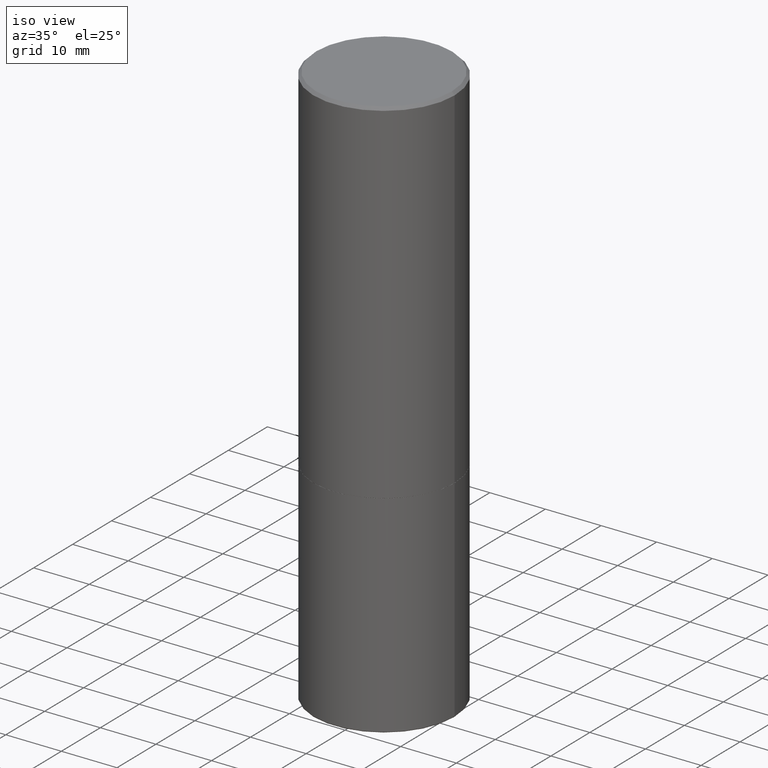
[diagram: clean part render]
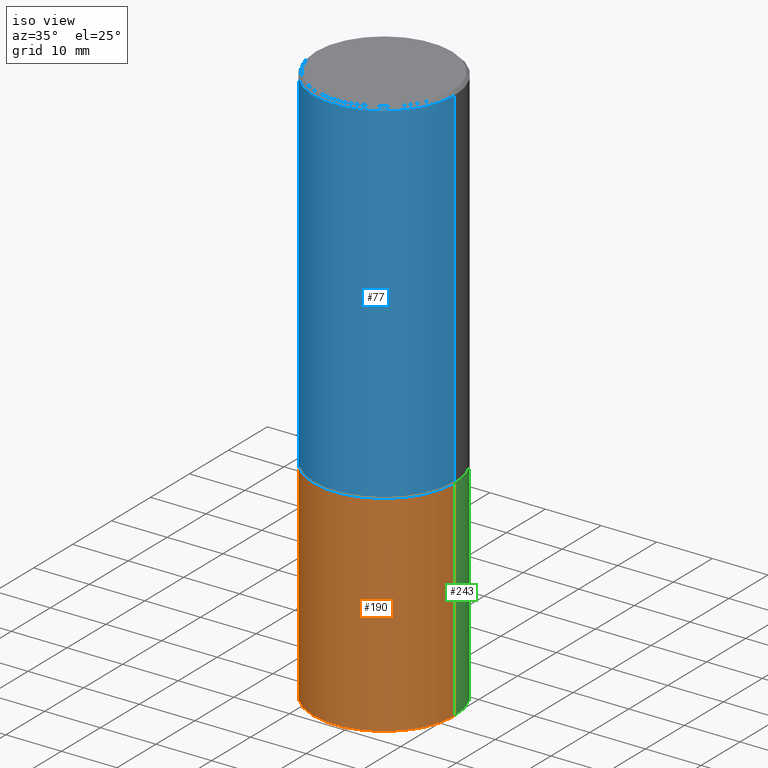
[diagram: same view with three faces highlighted in distinct colors, each labeled with its STEP entity id]
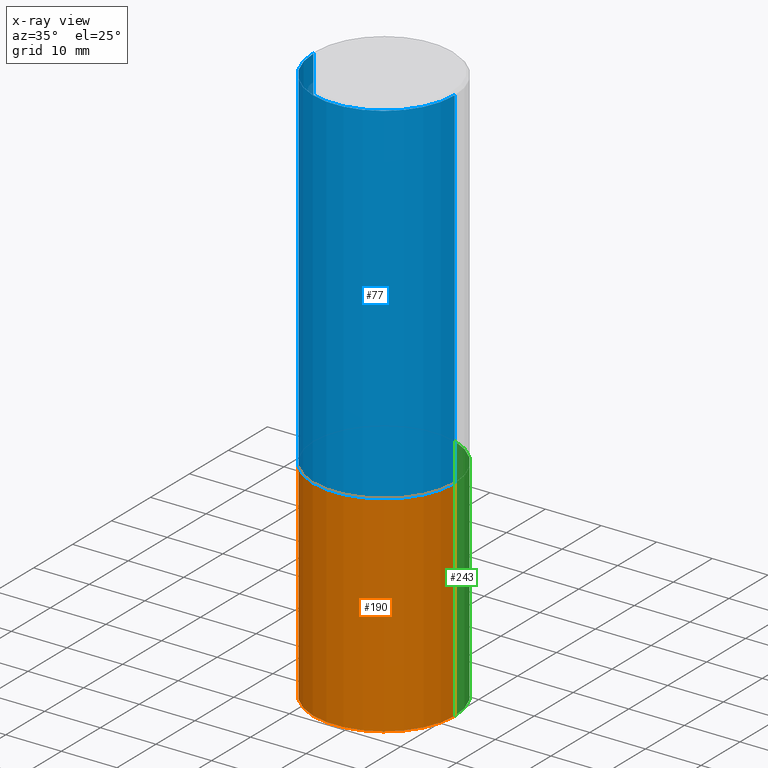
[diagram: x-ray of the same camera — body ghosted, the three highlighted faces saturated]
A machine part, iso view with three faces highlighted in distinct colors.
The next image is the same camera in x-ray (body ghosted, the three faces saturated) — at least one of them is partly hidden behind the body in this view.
Their STEP definitions:

[orange] entity #190 — the highlighted cylindrical surface (partial cylindrical patch) has radius 12.7 mm, axis along (-0, 0, 1).
#7 = DIRECTION ( 'NONE',  ( 1.000000000000000000, -6.982962677686266711E-15, 4.876176775795935793E-29 ) ) ;
#9 = EDGE_CURVE ( 'NONE', #217, #93, #27, .T. ) ;
#20 = CIRCLE ( 'NONE', #200, 0.5000000000000000000 ) ;
#25 = DIRECTION ( 'NONE',  ( 1.000000000000000000, -6.982962677686269077E-15, 0.000000000000000000 ) ) ;
#27 = CIRCLE ( 'NONE', #411, 0.5000000000000000000 ) ;
#34 = EDGE_CURVE ( 'NONE', #93, #147, #292, .T. ) ;
#53 = CARTESIAN_POINT ( 'NONE',  ( 6.113672015462842613E-29, -8.728703347107864943E-15, -2.500000000000000000 ) ) ;
#93 = VERTEX_POINT ( 'NONE', #346 ) ;
#96 = EDGE_CURVE ( 'NONE', #341, #147, #20, .T. ) ;
#127 = ORIENTED_EDGE ( 'NONE', *, *, #345, .F. ) ;
#144 = VECTOR ( 'NONE', #369, 39.37007874015748143 ) ;
#147 = VERTEX_POINT ( 'NONE', #349 ) ;
#190 = ADVANCED_FACE ( 'NONE', ( #202 ), #273, .T. ) ;
#192 = CARTESIAN_POINT ( 'NONE',  ( 0.5000000000000000000, -3.491481338843133355E-15, 2.438088387897967896E-29 ) ) ;
#200 = AXIS2_PLACEMENT_3D ( 'NONE', #53, #290, #25 ) ;
#202 = FACE_OUTER_BOUND ( 'NONE', #282, .T. ) ;
#217 = VERTEX_POINT ( 'NONE', #330 ) ;
#230 = AXIS2_PLACEMENT_3D ( 'NONE', #364, #306, #7 ) ;
#241 = LINE ( 'NONE', #279, #144 ) ;
#273 = CYLINDRICAL_SURFACE ( 'NONE', #230, 0.5000000000000000000 ) ;
#279 = CARTESIAN_POINT ( 'NONE',  ( -0.5000000000000000000, 3.552713678800500929E-15, -2.459467545127452891E-29 ) ) ;
#282 = EDGE_LOOP ( 'NONE', ( #127, #370, #377, #399 ) ) ;
#290 = DIRECTION ( 'NONE',  ( -2.445468806185136597E-29, 3.491481338843145583E-15, 1.000000000000000000 ) ) ;
#292 = LINE ( 'NONE', #192, #304 ) ;
#304 = VECTOR ( 'NONE', #321, 39.37007874015748143 ) ;
#306 = DIRECTION ( 'NONE',  ( -2.445468806185136597E-29, 3.491481338843145583E-15, 1.000000000000000000 ) ) ;
#321 = DIRECTION ( 'NONE',  ( -2.445468806185136877E-29, 3.491481338843145188E-15, 1.000000000000000000 ) ) ;
#330 = CARTESIAN_POINT ( 'NONE',  ( -0.5000000000000000000, -1.037829686318364817E-14, -3.989999999999999769 ) ) ;
#341 = VERTEX_POINT ( 'NONE', #373 ) ;
#345 = EDGE_CURVE ( 'NONE', #217, #341, #241, .T. ) ;
#346 = CARTESIAN_POINT ( 'NONE',  ( 0.5000000000000000000, -1.742249188082728404E-14, -3.989999999999999769 ) ) ;
#349 = CARTESIAN_POINT ( 'NONE',  ( 0.5000000000000000000, -1.222018468595099830E-14, -2.500000000000000000 ) ) ;
#351 = DIRECTION ( 'NONE',  ( -2.445468806185136597E-29, 3.491481338843145583E-15, 1.000000000000000000 ) ) ;
#364 = CARTESIAN_POINT ( 'NONE',  ( 0.000000000000000000, 0.000000000000000000, 0.000000000000000000 ) ) ;
#369 = DIRECTION ( 'NONE',  ( -2.445468806185136877E-29, 3.491481338843145188E-15, 1.000000000000000000 ) ) ;
#370 = ORIENTED_EDGE ( 'NONE', *, *, #9, .T. ) ;
#373 = CARTESIAN_POINT ( 'NONE',  ( -0.5000000000000000000, -7.777143265745505305E-15, -2.500000000000000000 ) ) ;
#377 = ORIENTED_EDGE ( 'NONE', *, *, #34, .T. ) ;
#382 = CARTESIAN_POINT ( 'NONE',  ( 9.757420536678694842E-29, -1.393101054198414910E-14, -3.989999999999999769 ) ) ;
#399 = ORIENTED_EDGE ( 'NONE', *, *, #96, .F. ) ;
#411 = AXIS2_PLACEMENT_3D ( 'NONE', #382, #351, #414 ) ;
#414 = DIRECTION ( 'NONE',  ( 1.000000000000000000, -6.982962677686266711E-15, 0.000000000000000000 ) ) ;

[blue] entity #77 — the highlighted cylindrical surface (partial cylindrical patch) has radius 12.7 mm, axis along (-0, 0, 1).
#3 = CARTESIAN_POINT ( 'NONE',  ( -0.5000000000000001110, 3.552713678800501718E-15, -2.459467545127453732E-29 ) ) ;
#8 = CARTESIAN_POINT ( 'NONE',  ( -0.5000000000000002220, -8.448070674724393209E-16, -2.499000000000000110 ) ) ;
#10 = VERTEX_POINT ( 'NONE', #296 ) ;
#36 = DIRECTION ( 'NONE',  ( 1.000000000000000000, -6.982962677686269866E-15, 0.000000000000000000 ) ) ;
#51 = ORIENTED_EDGE ( 'NONE', *, *, #295, .F. ) ;
#70 = CARTESIAN_POINT ( 'NONE',  ( -0.5000000000000001110, 3.421651712066270452E-15, -0.02000000000000010797 ) ) ;
#74 = CARTESIAN_POINT ( 'NONE',  ( 0.5000000000000001110, -3.491481338843134539E-15, 2.438088387897968457E-29 ) ) ;
#77 = ADVANCED_FACE ( 'NONE', ( #228 ), #161, .T. ) ;
#82 = EDGE_LOOP ( 'NONE', ( #51, #153, #175, #142 ) ) ;
#84 = AXIS2_PLACEMENT_3D ( 'NONE', #103, #236, #36 ) ;
#91 = VECTOR ( 'NONE', #135, 39.37007874015748143 ) ;
#103 = CARTESIAN_POINT ( 'NONE',  ( 6.111226546656657010E-29, -8.725211865769021935E-15, -2.499000000000000110 ) ) ;
#135 = DIRECTION ( 'NONE',  ( -2.445468806185136877E-29, 3.491481338843145188E-15, 1.000000000000000000 ) ) ;
#138 = EDGE_CURVE ( 'NONE', #210, #10, #294, .T. ) ;
#142 = ORIENTED_EDGE ( 'NONE', *, *, #138, .F. ) ;
#153 = ORIENTED_EDGE ( 'NONE', *, *, #310, .T. ) ;
#160 = DIRECTION ( 'NONE',  ( 1.000000000000000000, -6.982962677686265922E-15, 0.000000000000000000 ) ) ;
#161 = CYLINDRICAL_SURFACE ( 'NONE', #371, 0.5000000000000001110 ) ;
#175 = ORIENTED_EDGE ( 'NONE', *, *, #332, .T. ) ;
#183 = LINE ( 'NONE', #74, #214 ) ;
#194 = DIRECTION ( 'NONE',  ( -2.445468806185136597E-29, 3.491481338843145583E-15, 1.000000000000000000 ) ) ;
#209 = DIRECTION ( 'NONE',  ( -2.445468806185136877E-29, 3.491481338843145188E-15, 1.000000000000000000 ) ) ;
#210 = VERTEX_POINT ( 'NONE', #70 ) ;
#214 = VECTOR ( 'NONE', #209, 39.37007874015748143 ) ;
#219 = DIRECTION ( 'NONE',  ( 1.000000000000000000, -6.982962677686267499E-15, 4.876176775795935793E-29 ) ) ;
#228 = FACE_OUTER_BOUND ( 'NONE', #82, .T. ) ;
#236 = DIRECTION ( 'NONE',  ( -2.445468806185136597E-29, 3.491481338843145583E-15, 1.000000000000000000 ) ) ;
#249 = CARTESIAN_POINT ( 'NONE',  ( 0.5000000000000002220, -1.221669320461215845E-14, -2.499000000000000110 ) ) ;
#261 = CARTESIAN_POINT ( 'NONE',  ( 4.890937612370299433E-31, -6.982962677686328587E-17, -0.02000000000000010797 ) ) ;
#294 = CIRCLE ( 'NONE', #393, 0.5000000000000001110 ) ;
#295 = EDGE_CURVE ( 'NONE', #318, #210, #327, .T. ) ;
#296 = CARTESIAN_POINT ( 'NONE',  ( 0.5000000000000001110, -3.500078625662629868E-15, -0.02000000000000010797 ) ) ;
#297 = DIRECTION ( 'NONE',  ( -2.445468806185136597E-29, 3.491481338843145583E-15, 1.000000000000000000 ) ) ;
#310 = EDGE_CURVE ( 'NONE', #318, #325, #329, .T. ) ;
#318 = VERTEX_POINT ( 'NONE', #8 ) ;
#325 = VERTEX_POINT ( 'NONE', #249 ) ;
#327 = LINE ( 'NONE', #3, #91 ) ;
#329 = CIRCLE ( 'NONE', #84, 0.5000000000000002220 ) ;
#332 = EDGE_CURVE ( 'NONE', #325, #10, #183, .T. ) ;
#354 = CARTESIAN_POINT ( 'NONE',  ( 0.000000000000000000, 0.000000000000000000, 0.000000000000000000 ) ) ;
#371 = AXIS2_PLACEMENT_3D ( 'NONE', #354, #297, #219 ) ;
#393 = AXIS2_PLACEMENT_3D ( 'NONE', #261, #194, #160 ) ;

[green] entity #243 — the highlighted cylindrical surface (partial cylindrical patch) has radius 12.7 mm, axis along (-0, 0, 1).
#34 = EDGE_CURVE ( 'NONE', #93, #147, #292, .T. ) ;
#35 = CARTESIAN_POINT ( 'NONE',  ( 0.000000000000000000, 0.000000000000000000, 0.000000000000000000 ) ) ;
#62 = EDGE_CURVE ( 'NONE', #93, #217, #116, .T. ) ;
#75 = ORIENTED_EDGE ( 'NONE', *, *, #345, .T. ) ;
#81 = AXIS2_PLACEMENT_3D ( 'NONE', #326, #416, #122 ) ;
#90 = DIRECTION ( 'NONE',  ( -2.445468806185136597E-29, 3.491481338843145583E-15, 1.000000000000000000 ) ) ;
#93 = VERTEX_POINT ( 'NONE', #346 ) ;
#104 = CIRCLE ( 'NONE', #213, 0.5000000000000000000 ) ;
#105 = DIRECTION ( 'NONE',  ( 1.000000000000000000, -6.982962677686266711E-15, 4.876176775795935793E-29 ) ) ;
#110 = ORIENTED_EDGE ( 'NONE', *, *, #34, .F. ) ;
#116 = CIRCLE ( 'NONE', #81, 0.5000000000000000000 ) ;
#122 = DIRECTION ( 'NONE',  ( 1.000000000000000000, -6.982962677686266711E-15, 0.000000000000000000 ) ) ;
#143 = EDGE_CURVE ( 'NONE', #147, #341, #104, .T. ) ;
#144 = VECTOR ( 'NONE', #369, 39.37007874015748143 ) ;
#147 = VERTEX_POINT ( 'NONE', #349 ) ;
#151 = EDGE_LOOP ( 'NONE', ( #397, #75, #374, #110 ) ) ;
#166 = CYLINDRICAL_SURFACE ( 'NONE', #347, 0.5000000000000000000 ) ;
#167 = DIRECTION ( 'NONE',  ( -2.445468806185136597E-29, 3.491481338843145583E-15, 1.000000000000000000 ) ) ;
#187 = CARTESIAN_POINT ( 'NONE',  ( 6.113672015462842613E-29, -8.728703347107864943E-15, -2.500000000000000000 ) ) ;
#192 = CARTESIAN_POINT ( 'NONE',  ( 0.5000000000000000000, -3.491481338843133355E-15, 2.438088387897967896E-29 ) ) ;
#198 = FACE_OUTER_BOUND ( 'NONE', #151, .T. ) ;
#213 = AXIS2_PLACEMENT_3D ( 'NONE', #187, #90, #223 ) ;
#217 = VERTEX_POINT ( 'NONE', #330 ) ;
#223 = DIRECTION ( 'NONE',  ( 1.000000000000000000, -6.982962677686269077E-15, 0.000000000000000000 ) ) ;
#241 = LINE ( 'NONE', #279, #144 ) ;
#243 = ADVANCED_FACE ( 'NONE', ( #198 ), #166, .T. ) ;
#279 = CARTESIAN_POINT ( 'NONE',  ( -0.5000000000000000000, 3.552713678800500929E-15, -2.459467545127452891E-29 ) ) ;
#292 = LINE ( 'NONE', #192, #304 ) ;
#304 = VECTOR ( 'NONE', #321, 39.37007874015748143 ) ;
#321 = DIRECTION ( 'NONE',  ( -2.445468806185136877E-29, 3.491481338843145188E-15, 1.000000000000000000 ) ) ;
#326 = CARTESIAN_POINT ( 'NONE',  ( 9.757420536678694842E-29, -1.393101054198414910E-14, -3.989999999999999769 ) ) ;
#330 = CARTESIAN_POINT ( 'NONE',  ( -0.5000000000000000000, -1.037829686318364817E-14, -3.989999999999999769 ) ) ;
#341 = VERTEX_POINT ( 'NONE', #373 ) ;
#345 = EDGE_CURVE ( 'NONE', #217, #341, #241, .T. ) ;
#346 = CARTESIAN_POINT ( 'NONE',  ( 0.5000000000000000000, -1.742249188082728404E-14, -3.989999999999999769 ) ) ;
#347 = AXIS2_PLACEMENT_3D ( 'NONE', #35, #167, #105 ) ;
#349 = CARTESIAN_POINT ( 'NONE',  ( 0.5000000000000000000, -1.222018468595099830E-14, -2.500000000000000000 ) ) ;
#369 = DIRECTION ( 'NONE',  ( -2.445468806185136877E-29, 3.491481338843145188E-15, 1.000000000000000000 ) ) ;
#373 = CARTESIAN_POINT ( 'NONE',  ( -0.5000000000000000000, -7.777143265745505305E-15, -2.500000000000000000 ) ) ;
#374 = ORIENTED_EDGE ( 'NONE', *, *, #143, .F. ) ;
#397 = ORIENTED_EDGE ( 'NONE', *, *, #62, .T. ) ;
#416 = DIRECTION ( 'NONE',  ( -2.445468806185136597E-29, 3.491481338843145583E-15, 1.000000000000000000 ) ) ;